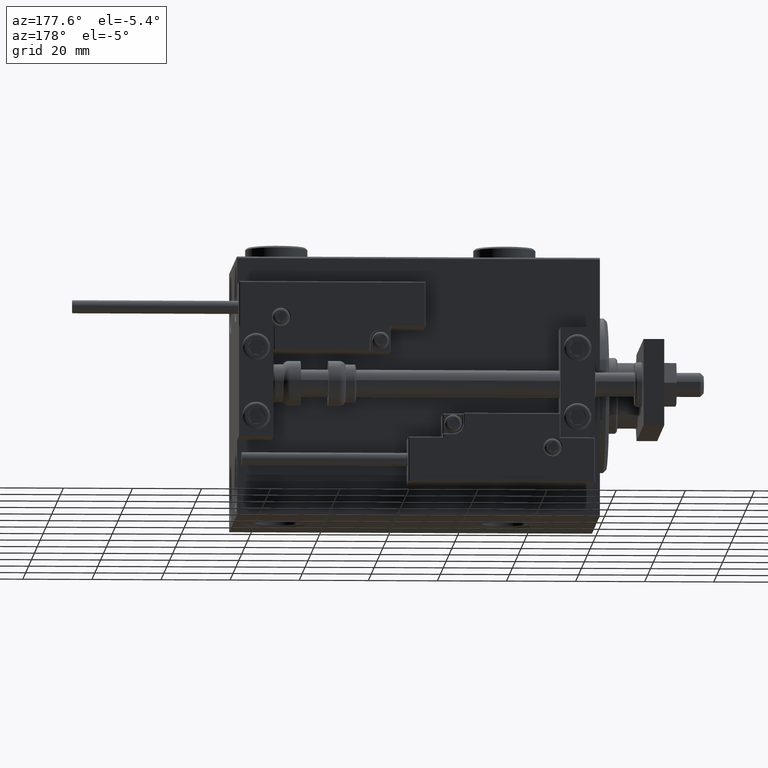
[diagram: clean part render]
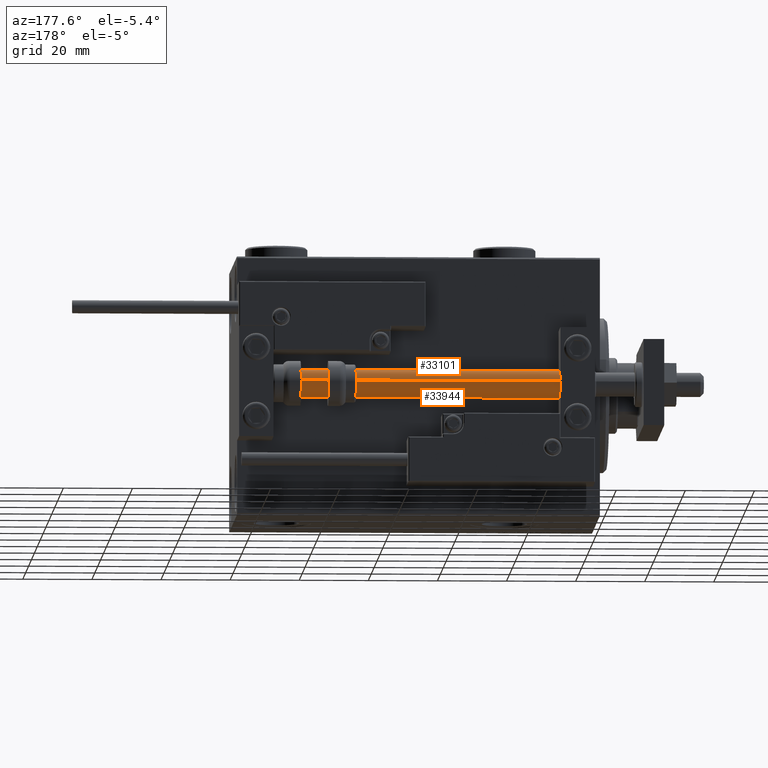
[diagram: same view with one multi-face feature highlighted, each face labeled with its STEP entity id]
A machine part, auxiliary view. The highlighted faces form ONE feature: a constant-radius fillet chain: 2 tangent blend faces with common blend radius 4 mm. The faces share edges in the B-rep.
Their STEP definitions:
[1] entity #33944 (Cylinder):
#127 = AXIS2_PLACEMENT_3D ( 'NONE', #26392, #10242, #41771 ) ;
#3796 = AXIS2_PLACEMENT_3D ( 'NONE', #41076, #5380, #12949 ) ;
#4865 = CYLINDRICAL_SURFACE ( 'NONE', #50953, 4.000000000000000000 ) ;
#5380 = DIRECTION ( 'NONE',  ( -0.000000000000000000, -0.000000000000000000, 1.000000000000000000 ) ) ;
#5596 = CARTESIAN_POINT ( 'NONE',  ( 4.000000000000000000, 4.898587196589412829E-16, 105.0000000000000000 ) ) ;
#5931 = ORIENTED_EDGE ( 'NONE', *, *, #51335, .F. ) ;
#7330 = VECTOR ( 'NONE', #35869, 1000.000000000000000 ) ;
#9749 = EDGE_CURVE ( 'NONE', #40124, #27836, #24562, .T. ) ;
#10242 = DIRECTION ( 'NONE',  ( 0.000000000000000000, 0.000000000000000000, 1.000000000000000000 ) ) ;
#11658 = CARTESIAN_POINT ( 'NONE',  ( 4.000000000000000000, 4.898587196589412829E-16, 105.0000000000000000 ) ) ;
#11979 = CARTESIAN_POINT ( 'NONE',  ( -4.000000000000000000, 0.000000000000000000, 105.0000000000000000 ) ) ;
#12949 = DIRECTION ( 'NONE',  ( 1.000000000000000000, 0.000000000000000000, 0.000000000000000000 ) ) ;
#13787 = VECTOR ( 'NONE', #46209, 1000.000000000000000 ) ;
#14205 = ORIENTED_EDGE ( 'NONE', *, *, #9749, .T. ) ;
#14380 = EDGE_CURVE ( 'NONE', #51129, #40124, #38381, .T. ) ;
#17610 = CIRCLE ( 'NONE', #127, 4.000000000000000000 ) ;
#18330 = DIRECTION ( 'NONE',  ( -0.000000000000000000, -0.000000000000000000, -1.000000000000000000 ) ) ;
#19362 = ORIENTED_EDGE ( 'NONE', *, *, #33181, .F. ) ;
#20752 = CARTESIAN_POINT ( 'NONE',  ( 0.000000000000000000, 0.000000000000000000, 105.0000000000000000 ) ) ;
#22057 = CARTESIAN_POINT ( 'NONE',  ( 4.000000000000000000, 4.898587196589412829E-16, 2.000000000000029310 ) ) ;
#24010 = VERTEX_POINT ( 'NONE', #5596 ) ;
#24562 = CIRCLE ( 'NONE', #3796, 4.000000000000000000 ) ;
#24659 = FACE_OUTER_BOUND ( 'NONE', #28328, .T. ) ;
#26392 = CARTESIAN_POINT ( 'NONE',  ( 0.000000000000000000, 0.000000000000000000, 105.0000000000000000 ) ) ;
#26781 = ORIENTED_EDGE ( 'NONE', *, *, #14380, .T. ) ;
#27290 = LINE ( 'NONE', #11658, #7330 ) ;
#27836 = VERTEX_POINT ( 'NONE', #22057 ) ;
#27838 = CARTESIAN_POINT ( 'NONE',  ( -4.000000000000000000, 0.000000000000000000, 2.000000000000029310 ) ) ;
#28328 = EDGE_LOOP ( 'NONE', ( #5931, #19362, #26781, #14205 ) ) ;
#33181 = EDGE_CURVE ( 'NONE', #51129, #24010, #17610, .T. ) ;
#33944 = ADVANCED_FACE ( 'NONE', ( #24659 ), #4865, .T. ) ;
#35869 = DIRECTION ( 'NONE',  ( -0.000000000000000000, -0.000000000000000000, -1.000000000000000000 ) ) ;
#38381 = LINE ( 'NONE', #50645, #13787 ) ;
#40124 = VERTEX_POINT ( 'NONE', #27838 ) ;
#41076 = CARTESIAN_POINT ( 'NONE',  ( 0.000000000000000000, 0.000000000000000000, 2.000000000000029310 ) ) ;
#41771 = DIRECTION ( 'NONE',  ( 1.000000000000000000, 0.000000000000000000, 0.000000000000000000 ) ) ;
#45936 = DIRECTION ( 'NONE',  ( -1.000000000000000000, 0.000000000000000000, 0.000000000000000000 ) ) ;
#46209 = DIRECTION ( 'NONE',  ( -0.000000000000000000, -0.000000000000000000, -1.000000000000000000 ) ) ;
#50645 = CARTESIAN_POINT ( 'NONE',  ( -4.000000000000000000, 0.000000000000000000, 105.0000000000000000 ) ) ;
#50953 = AXIS2_PLACEMENT_3D ( 'NONE', #20752, #18330, #45936 ) ;
#51129 = VERTEX_POINT ( 'NONE', #11979 ) ;
#51335 = EDGE_CURVE ( 'NONE', #24010, #27836, #27290, .T. ) ;
[2] entity #33101 (Cylinder):
#2021 = AXIS2_PLACEMENT_3D ( 'NONE', #20869, #24780, #46067 ) ;
#2629 = AXIS2_PLACEMENT_3D ( 'NONE', #32408, #36817, #37078 ) ;
#3388 = EDGE_CURVE ( 'NONE', #24010, #51129, #9373, .T. ) ;
#5596 = CARTESIAN_POINT ( 'NONE',  ( 4.000000000000000000, 4.898587196589412829E-16, 105.0000000000000000 ) ) ;
#7330 = VECTOR ( 'NONE', #35869, 1000.000000000000000 ) ;
#9196 = EDGE_LOOP ( 'NONE', ( #41803, #51174, #48433, #42426 ) ) ;
#9373 = CIRCLE ( 'NONE', #17694, 4.000000000000000000 ) ;
#11608 = EDGE_CURVE ( 'NONE', #27836, #40124, #27108, .T. ) ;
#11658 = CARTESIAN_POINT ( 'NONE',  ( 4.000000000000000000, 4.898587196589412829E-16, 105.0000000000000000 ) ) ;
#11979 = CARTESIAN_POINT ( 'NONE',  ( -4.000000000000000000, 0.000000000000000000, 105.0000000000000000 ) ) ;
#13787 = VECTOR ( 'NONE', #46209, 1000.000000000000000 ) ;
#14380 = EDGE_CURVE ( 'NONE', #51129, #40124, #38381, .T. ) ;
#17694 = AXIS2_PLACEMENT_3D ( 'NONE', #30776, #23443, #34153 ) ;
#20869 = CARTESIAN_POINT ( 'NONE',  ( 0.000000000000000000, 0.000000000000000000, 2.000000000000029310 ) ) ;
#22057 = CARTESIAN_POINT ( 'NONE',  ( 4.000000000000000000, 4.898587196589412829E-16, 2.000000000000029310 ) ) ;
#23443 = DIRECTION ( 'NONE',  ( 0.000000000000000000, 0.000000000000000000, 1.000000000000000000 ) ) ;
#24010 = VERTEX_POINT ( 'NONE', #5596 ) ;
#24780 = DIRECTION ( 'NONE',  ( -0.000000000000000000, -0.000000000000000000, 1.000000000000000000 ) ) ;
#25605 = CYLINDRICAL_SURFACE ( 'NONE', #2629, 4.000000000000000000 ) ;
#27108 = CIRCLE ( 'NONE', #2021, 4.000000000000000000 ) ;
#27290 = LINE ( 'NONE', #11658, #7330 ) ;
#27836 = VERTEX_POINT ( 'NONE', #22057 ) ;
#27838 = CARTESIAN_POINT ( 'NONE',  ( -4.000000000000000000, 0.000000000000000000, 2.000000000000029310 ) ) ;
#30776 = CARTESIAN_POINT ( 'NONE',  ( 0.000000000000000000, 0.000000000000000000, 105.0000000000000000 ) ) ;
#32408 = CARTESIAN_POINT ( 'NONE',  ( 0.000000000000000000, 0.000000000000000000, 105.0000000000000000 ) ) ;
#33101 = ADVANCED_FACE ( 'NONE', ( #41259 ), #25605, .T. ) ;
#34153 = DIRECTION ( 'NONE',  ( 1.000000000000000000, 0.000000000000000000, 0.000000000000000000 ) ) ;
#35869 = DIRECTION ( 'NONE',  ( -0.000000000000000000, -0.000000000000000000, -1.000000000000000000 ) ) ;
#36817 = DIRECTION ( 'NONE',  ( -0.000000000000000000, -0.000000000000000000, -1.000000000000000000 ) ) ;
#37078 = DIRECTION ( 'NONE',  ( -1.000000000000000000, 0.000000000000000000, 0.000000000000000000 ) ) ;
#38381 = LINE ( 'NONE', #50645, #13787 ) ;
#40124 = VERTEX_POINT ( 'NONE', #27838 ) ;
#41259 = FACE_OUTER_BOUND ( 'NONE', #9196, .T. ) ;
#41803 = ORIENTED_EDGE ( 'NONE', *, *, #3388, .F. ) ;
#42426 = ORIENTED_EDGE ( 'NONE', *, *, #14380, .F. ) ;
#46067 = DIRECTION ( 'NONE',  ( 1.000000000000000000, 0.000000000000000000, 0.000000000000000000 ) ) ;
#46209 = DIRECTION ( 'NONE',  ( -0.000000000000000000, -0.000000000000000000, -1.000000000000000000 ) ) ;
#48433 = ORIENTED_EDGE ( 'NONE', *, *, #11608, .T. ) ;
#50645 = CARTESIAN_POINT ( 'NONE',  ( -4.000000000000000000, 0.000000000000000000, 105.0000000000000000 ) ) ;
#51129 = VERTEX_POINT ( 'NONE', #11979 ) ;
#51174 = ORIENTED_EDGE ( 'NONE', *, *, #51335, .T. ) ;
#51335 = EDGE_CURVE ( 'NONE', #24010, #27836, #27290, .T. ) ;